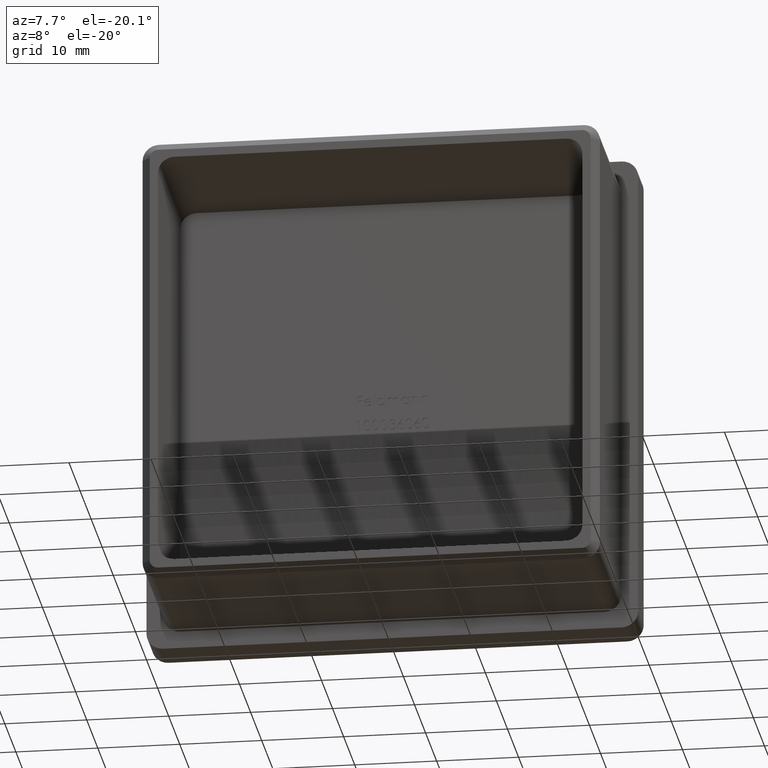
[diagram: clean part render]
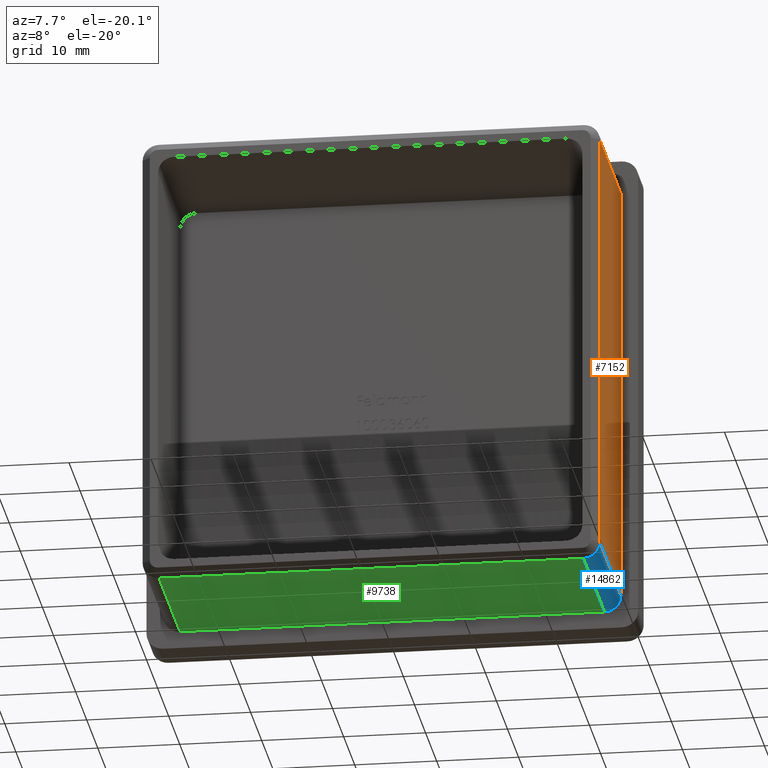
[diagram: same view with three faces highlighted in distinct colors, each labeled with its STEP entity id]
A machine part, auxiliary view with three faces highlighted in distinct colors.
Their STEP definitions:

[orange] entity #7152 — the highlighted planar face has unit normal (-1, 0, -0).
#227 = EDGE_CURVE ( 'NONE', #1848, #12065, #14972, .T. ) ;
#343 = ORIENTED_EDGE ( 'NONE', *, *, #5518, .T. ) ;
#633 = CARTESIAN_POINT ( 'NONE',  ( 27.90000000000000200, 0.0000000000000000000, -25.89999999999999900 ) ) ;
#893 = CARTESIAN_POINT ( 'NONE',  ( 27.90000000000000200, -19.00000000000000000, -25.89999999999999900 ) ) ;
#1848 = VERTEX_POINT ( 'NONE', #8851 ) ;
#2163 = DIRECTION ( 'NONE',  ( 0.0000000000000000000, 0.0000000000000000000, -1.000000000000000000 ) ) ;
#2234 = VECTOR ( 'NONE', #12354, 1000.000000000000000 ) ;
#2308 = VERTEX_POINT ( 'NONE', #633 ) ;
#3092 = ORIENTED_EDGE ( 'NONE', *, *, #227, .T. ) ;
#3205 = CARTESIAN_POINT ( 'NONE',  ( 27.90000000000000200, -20.00000000000000000, 27.90000000000000200 ) ) ;
#3358 = DIRECTION ( 'NONE',  ( -0.0000000000000000000, 0.0000000000000000000, 1.000000000000000000 ) ) ;
#3553 = FACE_OUTER_BOUND ( 'NONE', #12436, .T. ) ;
#3856 = VECTOR ( 'NONE', #2163, 1000.000000000000000 ) ;
#3942 = DIRECTION ( 'NONE',  ( 0.0000000000000000000, 1.000000000000000000, 0.0000000000000000000 ) ) ;
#5121 = CARTESIAN_POINT ( 'NONE',  ( 27.90000000000000200, -20.00000000000000000, -25.89999999999999900 ) ) ;
#5455 = LINE ( 'NONE', #6478, #13027 ) ;
#5464 = PLANE ( 'NONE',  #14000 ) ;
#5518 = EDGE_CURVE ( 'NONE', #2308, #8446, #5455, .T. ) ;
#5585 = LINE ( 'NONE', #6374, #2234 ) ;
#6374 = CARTESIAN_POINT ( 'NONE',  ( 27.90000000000000200, -20.00000000000000000, 25.89999999999999900 ) ) ;
#6478 = CARTESIAN_POINT ( 'NONE',  ( 27.90000000000000200, 0.0000000000000000000, 27.90000000000000200 ) ) ;
#7152 = ADVANCED_FACE ( 'NONE', ( #3553 ), #5464, .F. ) ;
#7382 = EDGE_CURVE ( 'NONE', #8446, #1848, #5585, .T. ) ;
#8446 = VERTEX_POINT ( 'NONE', #9368 ) ;
#8851 = CARTESIAN_POINT ( 'NONE',  ( 27.90000000000000200, -19.00000000000000000, 25.89999999999999900 ) ) ;
#9366 = LINE ( 'NONE', #5121, #14385 ) ;
#9368 = CARTESIAN_POINT ( 'NONE',  ( 27.90000000000000200, 0.0000000000000000000, 25.89999999999999900 ) ) ;
#10401 = DIRECTION ( 'NONE',  ( -1.000000000000000000, 0.0000000000000000000, -0.0000000000000000000 ) ) ;
#11506 = CARTESIAN_POINT ( 'NONE',  ( 27.90000000000000200, -19.00000000000000000, -25.89999999999999900 ) ) ;
#12065 = VERTEX_POINT ( 'NONE', #893 ) ;
#12346 = ORIENTED_EDGE ( 'NONE', *, *, #13650, .T. ) ;
#12354 = DIRECTION ( 'NONE',  ( -0.0000000000000000000, -1.000000000000000000, -0.0000000000000000000 ) ) ;
#12436 = EDGE_LOOP ( 'NONE', ( #13601, #3092, #12346, #343 ) ) ;
#13027 = VECTOR ( 'NONE', #13676, 1000.000000000000000 ) ;
#13601 = ORIENTED_EDGE ( 'NONE', *, *, #7382, .T. ) ;
#13650 = EDGE_CURVE ( 'NONE', #12065, #2308, #9366, .T. ) ;
#13676 = DIRECTION ( 'NONE',  ( -0.0000000000000000000, -0.0000000000000000000, 1.000000000000000000 ) ) ;
#14000 = AXIS2_PLACEMENT_3D ( 'NONE', #3205, #10401, #3358 ) ;
#14385 = VECTOR ( 'NONE', #3942, 1000.000000000000000 ) ;
#14972 = LINE ( 'NONE', #11506, #3856 ) ;

[blue] entity #14862 — the highlighted cylindrical surface (edge-blend (fillet) strip) has radius 2 mm, axis along (0, 1, 0).
#633 = CARTESIAN_POINT ( 'NONE',  ( 27.90000000000000200, 0.0000000000000000000, -25.89999999999999900 ) ) ;
#893 = CARTESIAN_POINT ( 'NONE',  ( 27.90000000000000200, -19.00000000000000000, -25.89999999999999900 ) ) ;
#1443 = ORIENTED_EDGE ( 'NONE', *, *, #2329, .F. ) ;
#1914 = DIRECTION ( 'NONE',  ( 0.0000000000000000000, 0.0000000000000000000, 1.000000000000000000 ) ) ;
#2106 = VERTEX_POINT ( 'NONE', #14296 ) ;
#2308 = VERTEX_POINT ( 'NONE', #633 ) ;
#2329 = EDGE_CURVE ( 'NONE', #8880, #2106, #9172, .T. ) ;
#3054 = EDGE_CURVE ( 'NONE', #2308, #8880, #3811, .T. ) ;
#3084 = CARTESIAN_POINT ( 'NONE',  ( 25.89999999999999900, -20.00000000000000000, -25.89999999999999900 ) ) ;
#3412 = AXIS2_PLACEMENT_3D ( 'NONE', #5533, #13823, #4262 ) ;
#3811 = CIRCLE ( 'NONE', #9310, 2.000000000000001800 ) ;
#3942 = DIRECTION ( 'NONE',  ( 0.0000000000000000000, 1.000000000000000000, 0.0000000000000000000 ) ) ;
#4262 = DIRECTION ( 'NONE',  ( 0.0000000000000000000, 0.0000000000000000000, -1.000000000000000000 ) ) ;
#4413 = CARTESIAN_POINT ( 'NONE',  ( 25.89999999999999900, -20.00000000000000000, -27.90000000000000200 ) ) ;
#4491 = DIRECTION ( 'NONE',  ( 0.0000000000000000000, 1.000000000000000000, 0.0000000000000000000 ) ) ;
#5121 = CARTESIAN_POINT ( 'NONE',  ( 27.90000000000000200, -20.00000000000000000, -25.89999999999999900 ) ) ;
#5371 = CIRCLE ( 'NONE', #3412, 2.000000000000001800 ) ;
#5392 = CARTESIAN_POINT ( 'NONE',  ( 25.89999999999999900, 0.0000000000000000000, -27.90000000000000200 ) ) ;
#5533 = CARTESIAN_POINT ( 'NONE',  ( 25.89999999999999900, -19.00000000000000000, -25.89999999999999900 ) ) ;
#6778 = VECTOR ( 'NONE', #8920, 1000.000000000000000 ) ;
#6790 = DIRECTION ( 'NONE',  ( 0.0000000000000000000, 0.0000000000000000000, 1.000000000000000000 ) ) ;
#8663 = EDGE_CURVE ( 'NONE', #12065, #2106, #5371, .T. ) ;
#8880 = VERTEX_POINT ( 'NONE', #5392 ) ;
#8920 = DIRECTION ( 'NONE',  ( -0.0000000000000000000, -1.000000000000000000, -0.0000000000000000000 ) ) ;
#9011 = DIRECTION ( 'NONE',  ( 0.0000000000000000000, 1.000000000000000000, 0.0000000000000000000 ) ) ;
#9172 = LINE ( 'NONE', #4413, #6778 ) ;
#9310 = AXIS2_PLACEMENT_3D ( 'NONE', #11457, #4491, #6790 ) ;
#9366 = LINE ( 'NONE', #5121, #14385 ) ;
#9538 = CYLINDRICAL_SURFACE ( 'NONE', #12790, 2.000000000000001800 ) ;
#10729 = ORIENTED_EDGE ( 'NONE', *, *, #13650, .F. ) ;
#10865 = ORIENTED_EDGE ( 'NONE', *, *, #8663, .T. ) ;
#11056 = EDGE_LOOP ( 'NONE', ( #10729, #10865, #1443, #13073 ) ) ;
#11457 = CARTESIAN_POINT ( 'NONE',  ( 25.89999999999999900, 0.0000000000000000000, -25.89999999999999900 ) ) ;
#12065 = VERTEX_POINT ( 'NONE', #893 ) ;
#12790 = AXIS2_PLACEMENT_3D ( 'NONE', #3084, #9011, #1914 ) ;
#13073 = ORIENTED_EDGE ( 'NONE', *, *, #3054, .F. ) ;
#13650 = EDGE_CURVE ( 'NONE', #12065, #2308, #9366, .T. ) ;
#13823 = DIRECTION ( 'NONE',  ( 0.0000000000000000000, 1.000000000000000000, 0.0000000000000000000 ) ) ;
#14296 = CARTESIAN_POINT ( 'NONE',  ( 25.89999999999999900, -19.00000000000000000, -27.90000000000000200 ) ) ;
#14385 = VECTOR ( 'NONE', #3942, 1000.000000000000000 ) ;
#14862 = ADVANCED_FACE ( 'NONE', ( #14926 ), #9538, .T. ) ;
#14926 = FACE_OUTER_BOUND ( 'NONE', #11056, .T. ) ;

[green] entity #9738 — the highlighted planar face has unit normal (-0, 0, 1).
#360 = DIRECTION ( 'NONE',  ( 1.000000000000000000, 0.0000000000000000000, 0.0000000000000000000 ) ) ;
#523 = PLANE ( 'NONE',  #14194 ) ;
#984 = VERTEX_POINT ( 'NONE', #14777 ) ;
#1424 = VERTEX_POINT ( 'NONE', #10162 ) ;
#1511 = EDGE_LOOP ( 'NONE', ( #11184, #14848, #8586, #2686 ) ) ;
#1604 = DIRECTION ( 'NONE',  ( -0.0000000000000000000, 0.0000000000000000000, 1.000000000000000000 ) ) ;
#1731 = CARTESIAN_POINT ( 'NONE',  ( -25.89999999999999900, -19.00000000000000000, -27.90000000000000200 ) ) ;
#2084 = CARTESIAN_POINT ( 'NONE',  ( -27.90000000000000200, -0.0000000000000000000, -27.90000000000000200 ) ) ;
#2106 = VERTEX_POINT ( 'NONE', #14296 ) ;
#2329 = EDGE_CURVE ( 'NONE', #8880, #2106, #9172, .T. ) ;
#2686 = ORIENTED_EDGE ( 'NONE', *, *, #3964, .T. ) ;
#3198 = EDGE_CURVE ( 'NONE', #984, #1424, #5834, .T. ) ;
#3557 = EDGE_CURVE ( 'NONE', #2106, #984, #7127, .T. ) ;
#3964 = EDGE_CURVE ( 'NONE', #1424, #8880, #14721, .T. ) ;
#4413 = CARTESIAN_POINT ( 'NONE',  ( 25.89999999999999900, -20.00000000000000000, -27.90000000000000200 ) ) ;
#4512 = DIRECTION ( 'NONE',  ( 1.000000000000000000, 0.0000000000000000000, 0.0000000000000000000 ) ) ;
#5392 = CARTESIAN_POINT ( 'NONE',  ( 25.89999999999999900, 0.0000000000000000000, -27.90000000000000200 ) ) ;
#5834 = LINE ( 'NONE', #5916, #13621 ) ;
#5916 = CARTESIAN_POINT ( 'NONE',  ( -25.89999999999999900, -20.00000000000000000, -27.90000000000000200 ) ) ;
#6237 = CARTESIAN_POINT ( 'NONE',  ( -27.90000000000000200, -20.00000000000000000, -27.90000000000000200 ) ) ;
#6778 = VECTOR ( 'NONE', #8920, 1000.000000000000000 ) ;
#7127 = LINE ( 'NONE', #1731, #8066 ) ;
#8066 = VECTOR ( 'NONE', #8777, 1000.000000000000000 ) ;
#8393 = DIRECTION ( 'NONE',  ( 0.0000000000000000000, 1.000000000000000000, -0.0000000000000000000 ) ) ;
#8586 = ORIENTED_EDGE ( 'NONE', *, *, #3198, .T. ) ;
#8678 = FACE_OUTER_BOUND ( 'NONE', #1511, .T. ) ;
#8777 = DIRECTION ( 'NONE',  ( -1.000000000000000000, 0.0000000000000000000, -0.0000000000000000000 ) ) ;
#8880 = VERTEX_POINT ( 'NONE', #5392 ) ;
#8920 = DIRECTION ( 'NONE',  ( -0.0000000000000000000, -1.000000000000000000, -0.0000000000000000000 ) ) ;
#9172 = LINE ( 'NONE', #4413, #6778 ) ;
#9738 = ADVANCED_FACE ( 'NONE', ( #8678 ), #523, .F. ) ;
#10162 = CARTESIAN_POINT ( 'NONE',  ( -25.89999999999999900, 0.0000000000000000000, -27.90000000000000200 ) ) ;
#10283 = VECTOR ( 'NONE', #4512, 1000.000000000000000 ) ;
#11184 = ORIENTED_EDGE ( 'NONE', *, *, #2329, .T. ) ;
#13621 = VECTOR ( 'NONE', #8393, 1000.000000000000000 ) ;
#14194 = AXIS2_PLACEMENT_3D ( 'NONE', #6237, #1604, #360 ) ;
#14296 = CARTESIAN_POINT ( 'NONE',  ( 25.89999999999999900, -19.00000000000000000, -27.90000000000000200 ) ) ;
#14721 = LINE ( 'NONE', #2084, #10283 ) ;
#14777 = CARTESIAN_POINT ( 'NONE',  ( -25.89999999999999900, -19.00000000000000000, -27.90000000000000200 ) ) ;
#14848 = ORIENTED_EDGE ( 'NONE', *, *, #3557, .T. ) ;